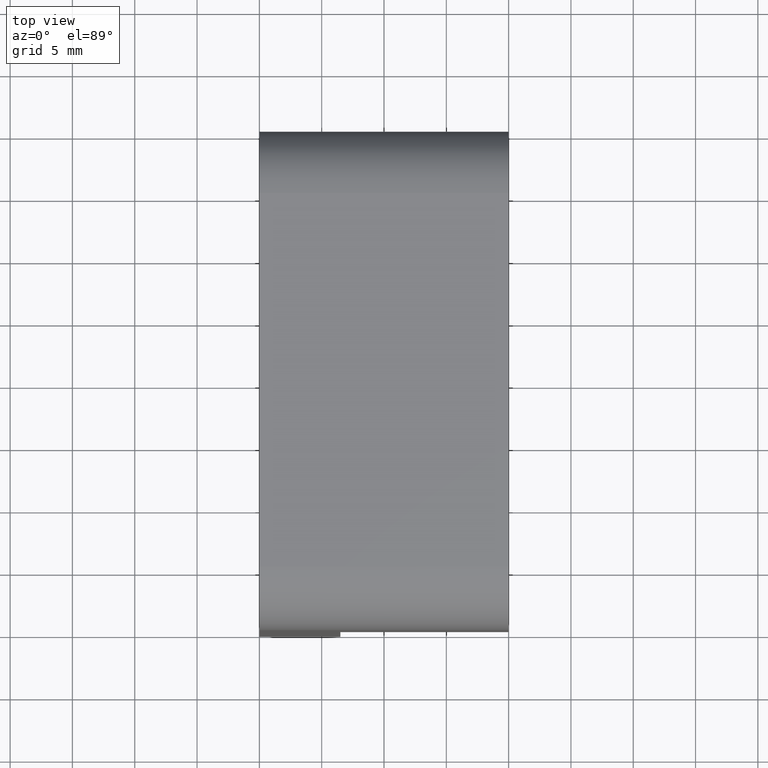
[diagram: clean part render]
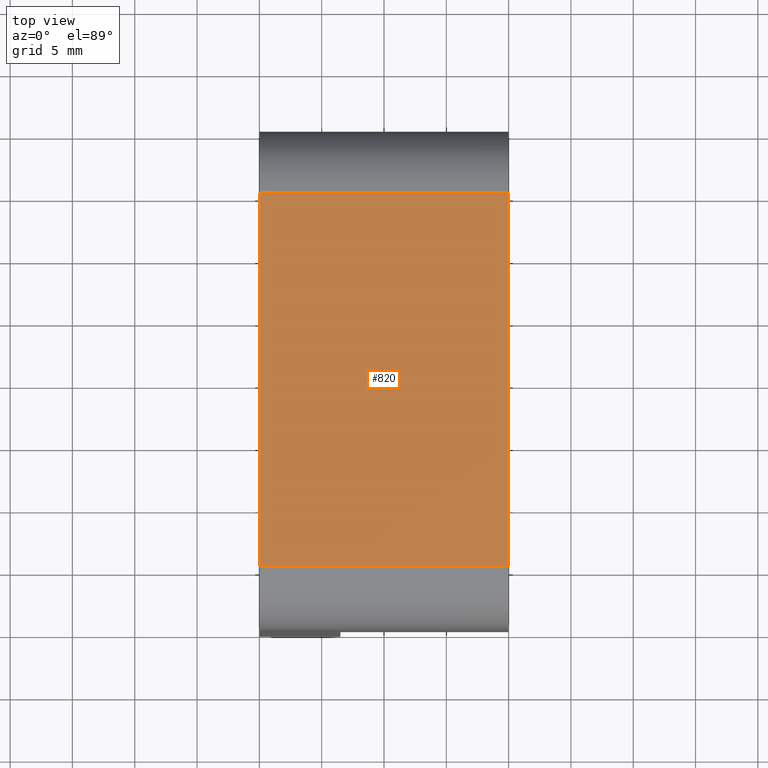
[diagram: same view with one face highlighted and labeled with its STEP entity id]
A machine part, top view. The second image highlights one B-rep face of the part: STEP entity #820.
In plain terms, the highlighted planar face has unit normal (0, 0, 1).
Its self-contained STEP definition (entity closure, byte-faithful):
#114=FACE_OUTER_BOUND('',#166,.T.);
#166=EDGE_LOOP('',(#745,#746,#747,#748));
#233=LINE('',#1329,#315);
#237=LINE('',#1344,#319);
#241=LINE('',#1353,#323);
#245=LINE('',#1361,#327);
#315=VECTOR('',#1091,30.);
#319=VECTOR('',#1107,20.);
#323=VECTOR('',#1115,30.);
#327=VECTOR('',#1123,20.);
#394=VERTEX_POINT('',#1326);
#395=VERTEX_POINT('',#1328);
#399=VERTEX_POINT('',#1340);
#403=VERTEX_POINT('',#1352);
#500=EDGE_CURVE('',#394,#395,#233,.T.);
#508=EDGE_CURVE('',#395,#399,#237,.T.);
#512=EDGE_CURVE('',#399,#403,#241,.T.);
#517=EDGE_CURVE('',#403,#394,#245,.T.);
#745=ORIENTED_EDGE('',*,*,#508,.F.);
#746=ORIENTED_EDGE('',*,*,#500,.F.);
#747=ORIENTED_EDGE('',*,*,#517,.F.);
#748=ORIENTED_EDGE('',*,*,#512,.F.);
#776=PLANE('',#898);
#820=ADVANCED_FACE('',(#114),#776,.T.);
#898=AXIS2_PLACEMENT_3D('',#1369,#1133,#1134);
#1091=DIRECTION('',(0.,1.,0.));
#1107=DIRECTION('',(1.,0.,-5.55111512312578E-16));
#1115=DIRECTION('',(0.,-1.,0.));
#1123=DIRECTION('',(-1.,0.,5.55111512312578E-16));
#1133=DIRECTION('center_axis',(5.55111512312578E-16,0.,1.));
#1134=DIRECTION('ref_axis',(1.,0.,-5.55111512312578E-16));
#1326=CARTESIAN_POINT('',(-20.,-15.,1.11022302462516E-14));
#1328=CARTESIAN_POINT('',(-20.,15.,1.11022302462516E-14));
#1329=CARTESIAN_POINT('',(-20.,0.,1.11022302462516E-14));
#1340=CARTESIAN_POINT('',(0.,15.,0.));
#1344=CARTESIAN_POINT('',(-16.3965517241379,15.,8.88178419700125E-15));
#1352=CARTESIAN_POINT('',(0.,-15.,0.));
#1353=CARTESIAN_POINT('',(0.,0.,0.));
#1361=CARTESIAN_POINT('',(-16.3965517241379,-15.,8.88178419700125E-15));
#1369=CARTESIAN_POINT('Origin',(-20.,0.,1.11022302462516E-14));